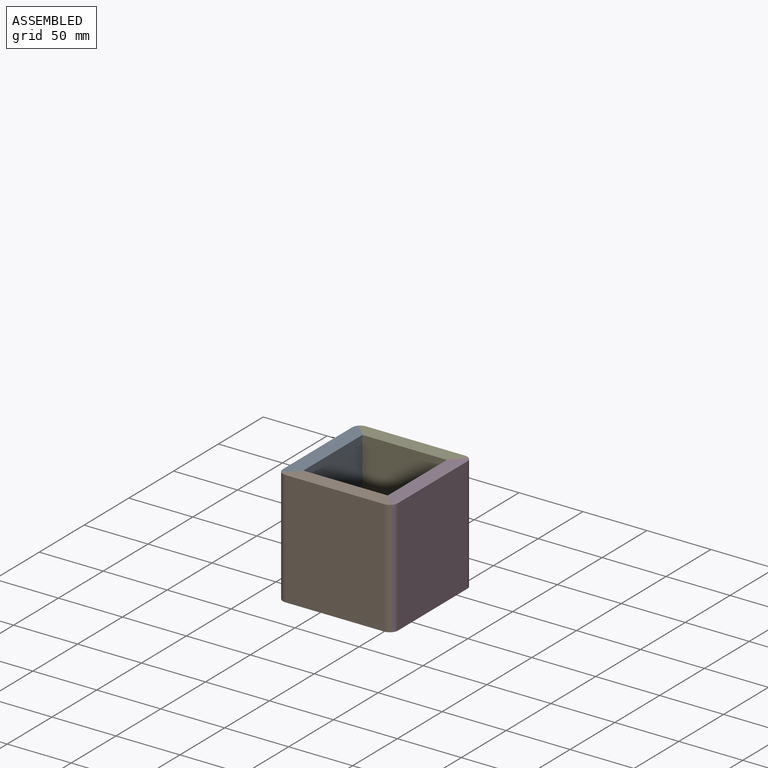
[diagram: assembled view]
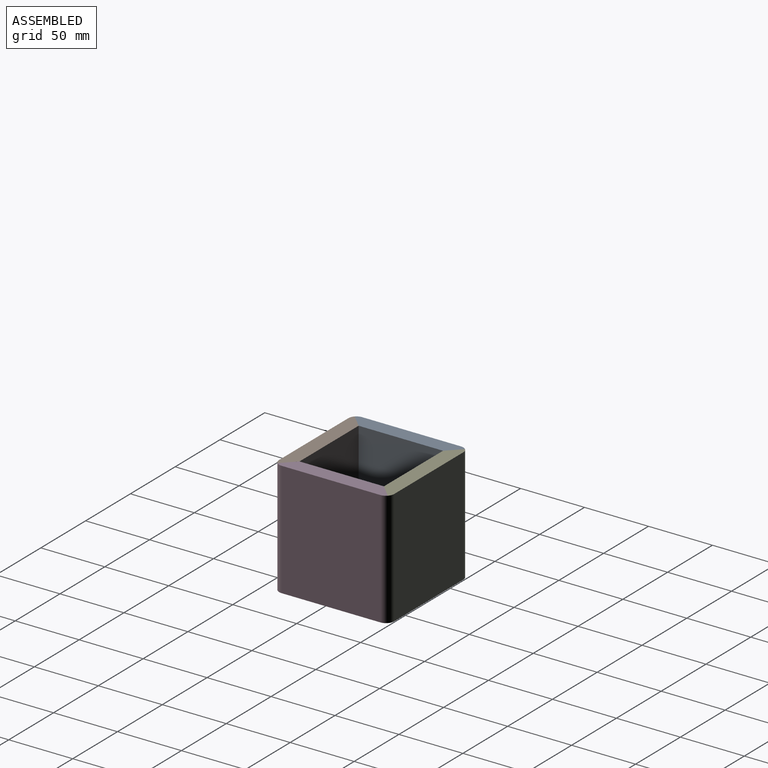
[diagram: assembled view, second angle]
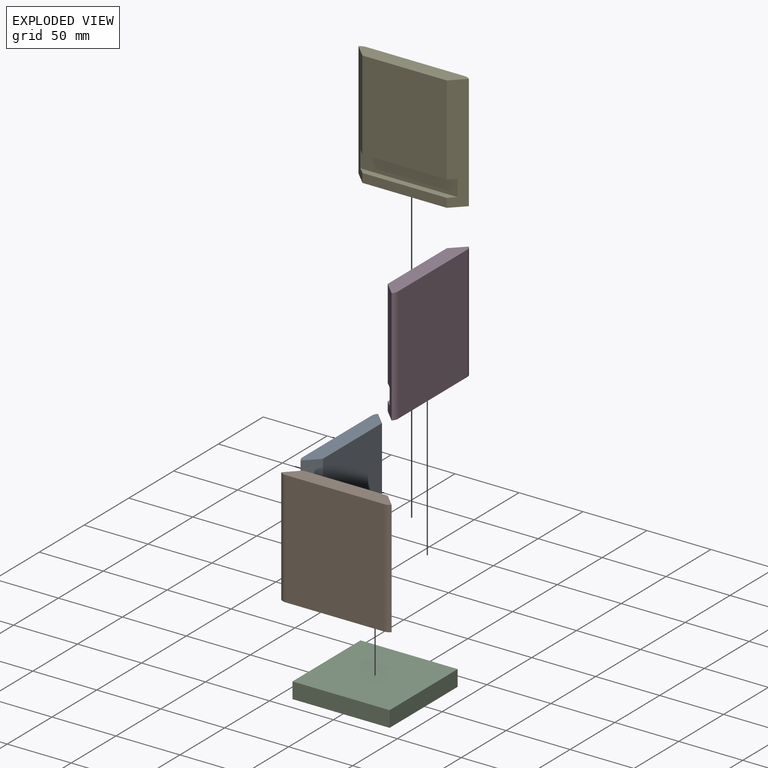
[diagram: exploded view]
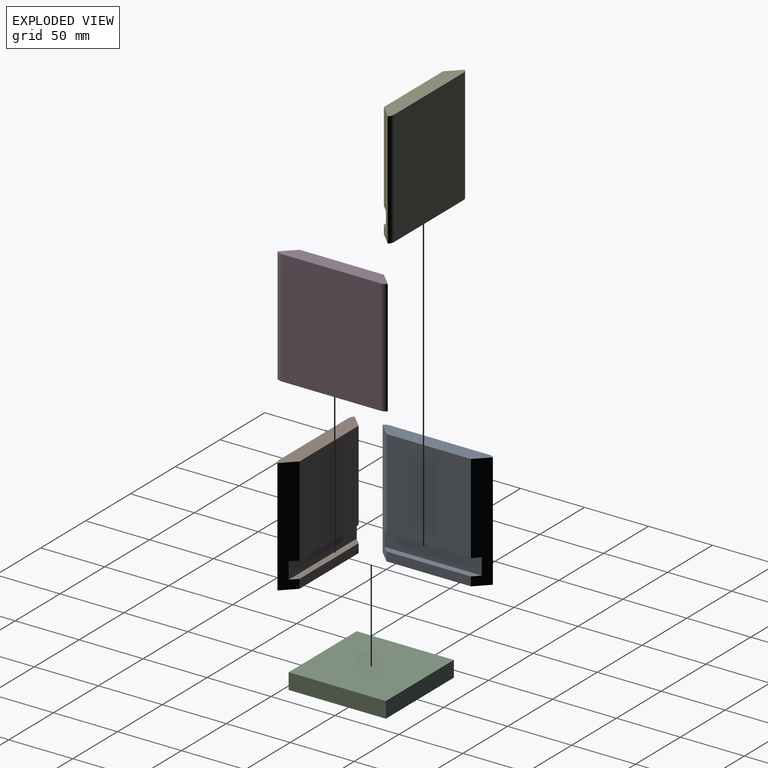
[diagram: exploded view, second angle]
ASSEMBLY  parts=5 mates=4
PART A: 12 faces, bbox 12x86.3x90 mm
  f0: plane 90x10.13mm, normal (0.71,0.71,0), area 1197.1mm2, adj f2,f3,f6,f7,f8,f9,f10,f11
  f1: plane 90x10.13mm, normal (0.71,-0.71,0), area 1197.1mm2, adj f2,f5,f6,f7,f8,f9,f10,f11
  f2: plane 66x7mm, normal (1,0,0), area 462mm2, adj f0,f1,f8,f10
  f3: cylinder r=6.4mm len=90mm, axis (0,0,-1), area 452.4mm2, adj f0,f4,f7,f8
  f4: plane 90x77.2mm, normal (-1,0,0), area 6948mm2, adj f3,f5,f7,f8
  f5: cylinder r=6.4mm len=90mm, axis (0,0,-1), area 452.4mm2, adj f1,f4,f7,f8
  f6: plane 70x66mm, normal (1,0,0), area 4620mm2, adj f0,f1,f7,f11
  f7: plane 86.25x12mm, normal (0,0,1), area 927.2mm2, adj f0,f1,f3,f4,f5,f6
  f8: plane 86.25x12mm, normal (0,0,-1), area 927.2mm2, adj f0,f1,f2,f3,f4,f5
  f9: plane 75.97x13mm, normal (1,0,0), area 987.6mm2, adj f0,f1,f10,f11
  f10: plane 75.97x4.98mm, normal (0,0,1), area 353.8mm2, adj f0,f1,f2,f9
  f11: plane 75.97x4.98mm, normal (0,0,-1), area 353.8mm2, adj f0,f1,f6,f9
PART B: same geometry as A
PART C: 6 faces, bbox 76x76x12.5 mm
  f0: plane 75.97x12.5mm, normal (-1,0,0), area 949.6mm2, adj f1,f3,f4,f5
  f1: plane 75.97x12.5mm, normal (0,-1,0), area 949.6mm2, adj f0,f2,f4,f5
  f2: plane 75.97x12.5mm, normal (1,0,0), area 949.6mm2, adj f1,f3,f4,f5
  f3: plane 75.97x12.5mm, normal (0,1,0), area 949.6mm2, adj f0,f2,f4,f5
  f4: plane 75.97x75.97mm, normal (0,0,1), area 5771.3mm2, adj f0,f1,f2,f3
  f5: plane 75.97x75.97mm, normal (0,0,-1), area 5771.3mm2, adj f0,f1,f2,f3
PART D: same geometry as A
PART E: same geometry as A
PLACE A t=(-48.52,-5.57,22.44)mm
PLACE B rot(axis=(0,0,1),90deg) t=(-48.52,-5.57,22.44)mm
PLACE C t=(-48.52,-5.57,22.44)mm
PLACE D rot(axis=(0,0,1),180deg) t=(-48.52,-5.57,22.44)mm
PLACE E rot(axis=(0,0,-1),90deg) t=(-48.52,-5.57,22.44)mm
MATE fastened B.f7 <-> A.f7  axis (0,0,1) through (-91.65,-48.7,112.44)mm
MATE fastened E.f7 <-> A.f7  axis (0,0,1) through (-91.65,37.56,112.44)mm
MATE fastened C.f5 <-> A.f10  axis (0,0,-1) through (-86.51,32.41,29.44)mm
MATE fastened D.f7 <-> E.f7  axis (0,0,1) through (-5.4,37.56,112.44)mm
